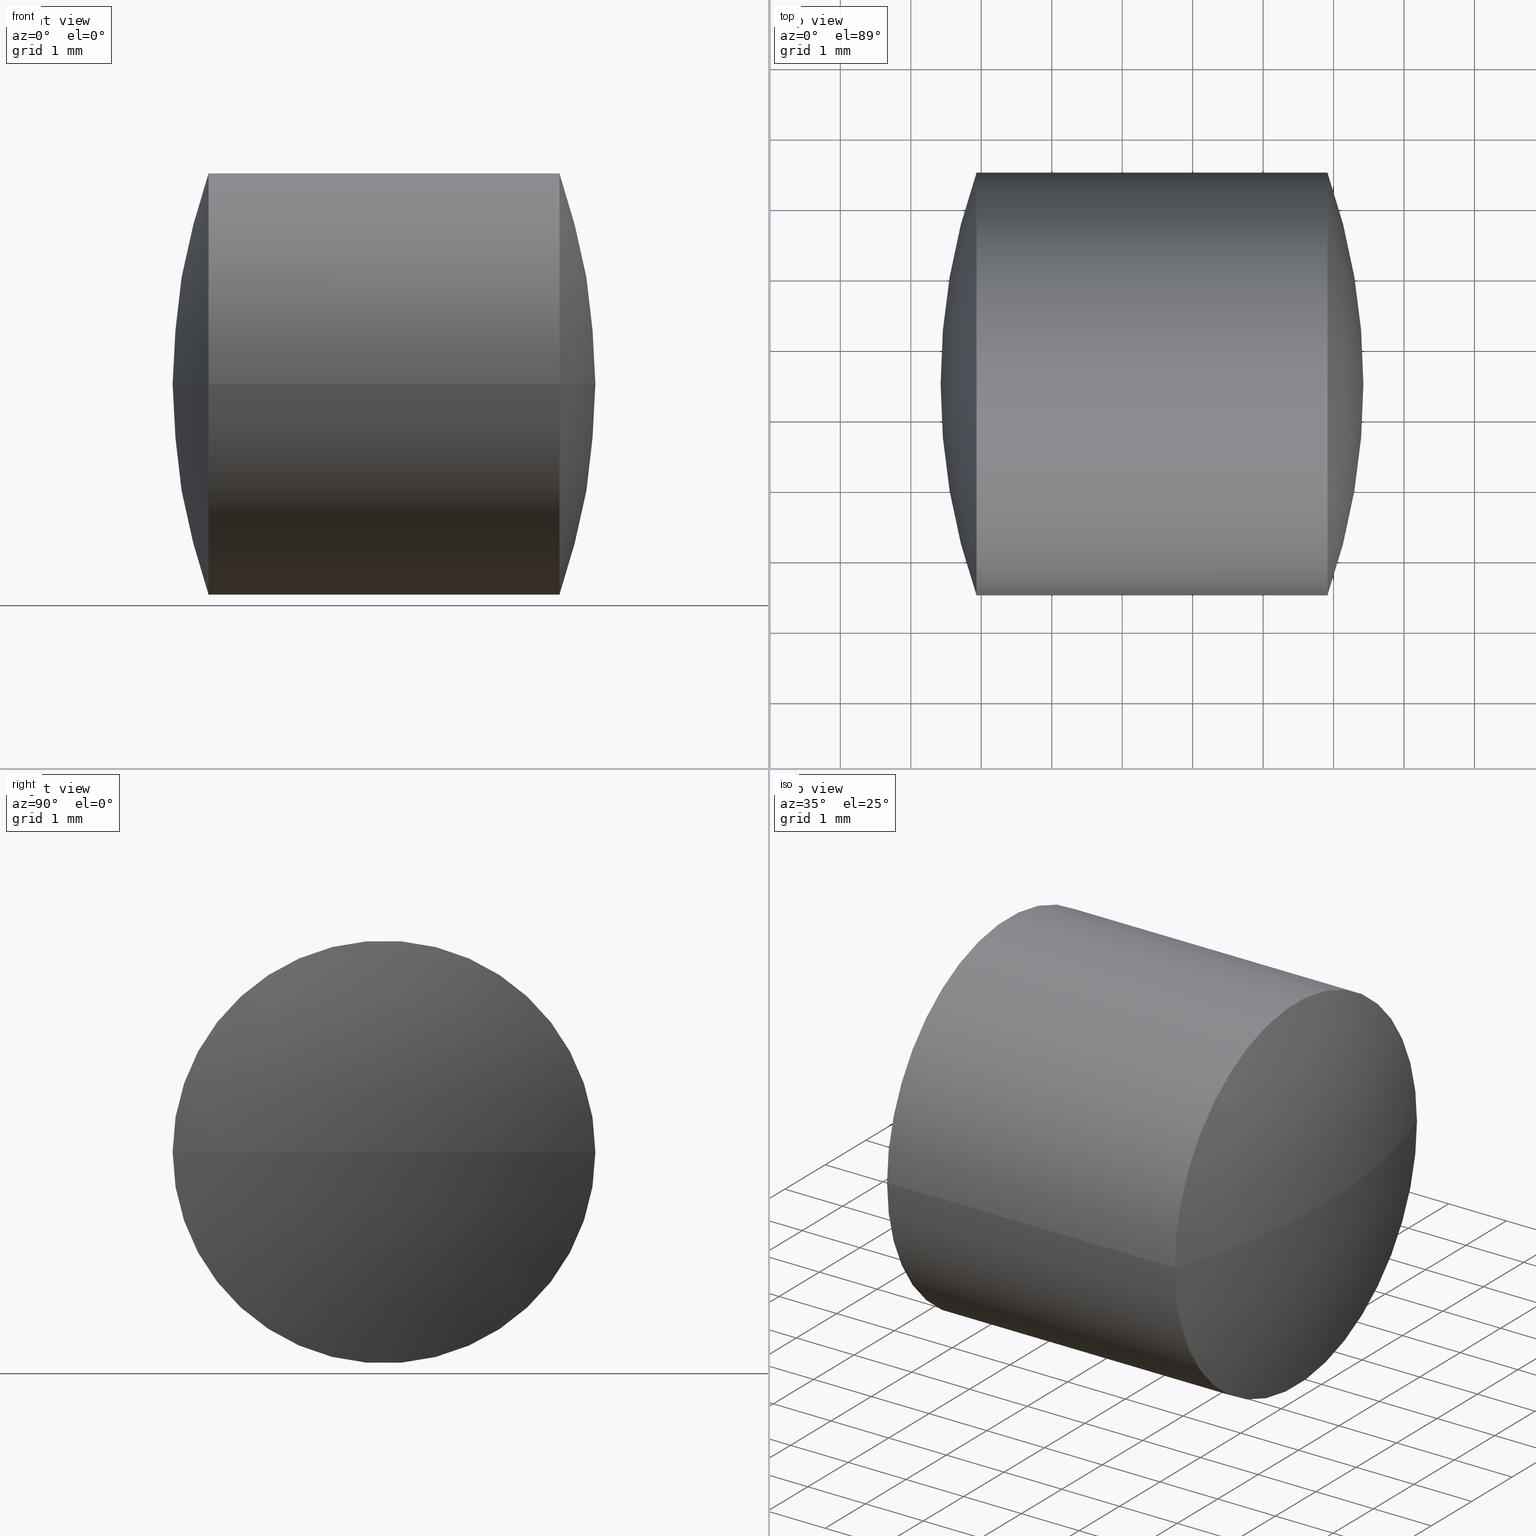
[diagram: canonical four-view strip — front | top / right | iso, engineering-drawing reading convention]
A machine part, canonical four-view strip (front | top / right | iso — engineering-drawing reading convention). The complete STEP part file that produces these views, byte-faithful:
ISO-10303-21;
HEADER;
FILE_DESCRIPTION (( 'STEP AP203' ),
    '1' );
FILE_NAME ('110007.STEP',
    '2019-06-24T09:16:13',
    ( '' ),
    ( '' ),
    'SwSTEP 2.0',
    'SolidWorks 2016',
    '' );
FILE_SCHEMA (( 'CONFIG_CONTROL_DESIGN' ));
ENDSEC;

DATA;
#1 = CIRCLE ( 'NONE', #157, 3.000001032702598100 ) ;
#2 = SPHERICAL_SURFACE ( 'NONE', #71, 9.078662146976359500 ) ;
#3 = EDGE_CURVE ( 'NONE', #282, #68, #256, .T. ) ;
#4 = PERSON_AND_ORGANIZATION ( #229, #103 ) ;
#5 = ORIENTED_EDGE ( 'NONE', *, *, #109, .F. ) ;
#6 = DIRECTION ( 'NONE',  ( 9.553849718675432400E-016, -1.000000000000000000, 0.0000000000000000000 ) ) ;
#7 = CC_DESIGN_PERSON_AND_ORGANIZATION_ASSIGNMENT ( #180, #62, ( #44 ) ) ;
#8 = CARTESIAN_POINT ( 'NONE',  ( 23.77530362994406900, 11.48412513980632000, 0.0000000000000000000 ) ) ;
#9 = LOCAL_TIME ( 17, 16, 13.00000000000000000, #93 ) ;
#10 = ORIENTED_EDGE ( 'NONE', *, *, #202, .F. ) ;
#11 = APPLICATION_PROTOCOL_DEFINITION ( 'international standard', 'config_control_design', 1994, #291 ) ;
#12 = DIRECTION ( 'NONE',  ( 9.553849718675432400E-016, -1.000000000000000000, 0.0000000000000000000 ) ) ;
#13 = CARTESIAN_POINT ( 'NONE',  ( 22.91320241020381200, 11.48412513980631800, 0.0000000000000000000 ) ) ;
#14 = DATE_AND_TIME ( #141, #218 ) ;
#15 = ORIENTED_EDGE ( 'NONE', *, *, #31, .F. ) ;
#16 = DIRECTION ( 'NONE',  ( 1.000000000000000000, 1.031215386547264900E-015, -0.0000000000000000000 ) ) ;
#17 = APPLICATION_CONTEXT ( 'configuration controlled 3d designs of mechanical parts and assemblies' ) ;
#18 = ADVANCED_FACE ( 'NONE', ( #170 ), #196, .T. ) ;
#19 = DESIGN_CONTEXT ( 'detailed design', #119, 'design' ) ;
#20 = APPROVAL_PERSON_ORGANIZATION ( #238, #237, #300 ) ;
#21 = PERSON_AND_ORGANIZATION ( #229, #103 ) ;
#22 = FACE_OUTER_BOUND ( 'NONE', #85, .T. ) ;
#23 = PERSON_AND_ORGANIZATION_ROLE ( 'classification_officer' ) ;
#24 = ORIENTED_EDGE ( 'NONE', *, *, #269, .T. ) ;
#25 = CC_DESIGN_PERSON_AND_ORGANIZATION_ASSIGNMENT ( #128, #140, ( #285 ) ) ;
#26 = ADVANCED_BREP_SHAPE_REPRESENTATION ( '110007', ( #113, #120 ), #99 ) ;
#27 = CIRCLE ( 'NONE', #129, 9.078662146976460800 ) ;
#28 = CC_DESIGN_APPROVAL ( #42, ( #285 ) ) ;
#29 = APPROVAL_DATE_TIME ( #69, #50 ) ;
#30 = ORIENTED_EDGE ( 'NONE', *, *, #59, .F. ) ;
#31 = EDGE_CURVE ( 'NONE', #68, #245, #82, .T. ) ;
#32 = DIRECTION ( 'NONE',  ( -1.146461966241064700E-015, 1.000000000000000000, 0.0000000000000000000 ) ) ;
#33 = CALENDAR_DATE ( 2019, 24, 6 ) ;
#34 = LOCAL_TIME ( 17, 16, 13.00000000000000000, #55 ) ;
#35 = ADVANCED_FACE ( 'NONE', ( #264 ), #100, .T. ) ;
#36 = DIRECTION ( 'NONE',  ( 0.0000000000000000000, 0.0000000000000000000, 1.000000000000000000 ) ) ;
#37 = CARTESIAN_POINT ( 'NONE',  ( 23.77530362994406600, 14.48412617250891500, 0.0000000000000000000 ) ) ;
#38 = CARTESIAN_POINT ( 'NONE',  ( 22.91320241020381600, 8.484124107103731700, 0.0000000000000000000 ) ) ;
#39 = COORDINATED_UNIVERSAL_TIME_OFFSET ( 8, 0, .AHEAD. ) ;
#40 = ADVANCED_FACE ( 'NONE', ( #22 ), #2, .T. ) ;
#41 = CARTESIAN_POINT ( 'NONE',  ( 17.42320994893274000, 11.48412513980631100, 0.0000000000000000000 ) ) ;
#42 = APPROVAL ( #91, 'δָ��' ) ;
#43 = COORDINATED_UNIVERSAL_TIME_OFFSET ( 8, 0, .AHEAD. ) ;
#44 = PRODUCT ( '110007', '110007', '', ( #179 ) ) ;
#45 = APPROVAL_ROLE ( '' ) ;
#46 = PRODUCT_DEFINITION ( 'δ֪', '', #143, #19 ) ;
#47 = APPLICATION_PROTOCOL_DEFINITION ( 'international standard', 'config_control_design', 1994, #119 ) ;
#48 = PERSON_AND_ORGANIZATION_ROLE ( 'creator' ) ;
#49 = LOCAL_TIME ( 17, 16, 13.00000000000000000, #283 ) ;
#50 = APPROVAL ( #190, 'δָ��' ) ;
#51 = CLOSED_SHELL ( 'NONE', ( #40, #35, #64, #244, #274, #18 ) ) ;
#52 = APPROVAL_STATUS ( 'not_yet_approved' ) ;
#53 = COORDINATED_UNIVERSAL_TIME_OFFSET ( 8, 0, .AHEAD. ) ;
#54 = CALENDAR_DATE ( 2019, 24, 6 ) ;
#55 = COORDINATED_UNIVERSAL_TIME_OFFSET ( 8, 0, .AHEAD. ) ;
#56 = AXIS2_PLACEMENT_3D ( 'NONE', #174, #177, #216 ) ;
#57 = DIRECTION ( 'NONE',  ( 0.0000000000000000000, 0.0000000000000000000, 1.000000000000000000 ) ) ;
#58 = ORIENTED_EDGE ( 'NONE', *, *, #269, .F. ) ;
#59 = EDGE_CURVE ( 'NONE', #188, #95, #126, .T. ) ;
#60 = DIRECTION ( 'NONE',  ( -1.156481919217246500E-015, 1.000000000000000000, 0.0000000000000000000 ) ) ;
#61 = LINE ( 'NONE', #37, #209 ) ;
#62 = PERSON_AND_ORGANIZATION_ROLE ( 'design_owner' ) ;
#63 = SECURITY_CLASSIFICATION ( '', '', #94 ) ;
#64 = ADVANCED_FACE ( 'NONE', ( #200 ), #70, .T. ) ;
#65 = AXIS2_PLACEMENT_3D ( 'NONE', #101, #267, #6 ) ;
#66 = CARTESIAN_POINT ( 'NONE',  ( 23.42319487147487300, 11.48412513980632200, 0.0000000000000000000 ) ) ;
#67 = APPROVAL_PERSON_ORGANIZATION ( #117, #42, #45 ) ;
#68 = VERTEX_POINT ( 'NONE', #132 ) ;
#69 = DATE_AND_TIME ( #195, #9 ) ;
#70 = SPHERICAL_SURFACE ( 'NONE', #65, 9.078662146976460800 ) ;
#71 = AXIS2_PLACEMENT_3D ( 'NONE', #130, #36, #290 ) ;
#72 = COORDINATED_UNIVERSAL_TIME_OFFSET ( 8, 0, .AHEAD. ) ;
#73 = DESIGN_CONTEXT ( 'detailed design', #114, 'design' ) ;
#74 = CC_DESIGN_DATE_AND_TIME_ASSIGNMENT ( #150, #259, ( #240 ) ) ;
#75 = PERSON_AND_ORGANIZATION ( #229, #103 ) ;
#76 = APPROVAL ( #144, 'δָ��' ) ;
#77 = CC_DESIGN_PERSON_AND_ORGANIZATION_ASSIGNMENT ( #295, #161, ( #63 ) ) ;
#78 = ORIENTED_EDGE ( 'NONE', *, *, #287, .F. ) ;
#79 = AXIS2_PLACEMENT_3D ( 'NONE', #242, #201, #60 ) ;
#80 = DIRECTION ( 'NONE',  ( 1.000000000000000000, 1.031215386547264900E-015, -0.0000000000000000000 ) ) ;
#81 = SPHERICAL_SURFACE ( 'NONE', #220, 9.078662146976460800 ) ;
#82 = CIRCLE ( 'NONE', #56, 3.000001032702598100 ) ;
#83 = DIRECTION ( 'NONE',  ( -1.156481919217245100E-015, 1.000000000000000000, 0.0000000000000000000 ) ) ;
#84 = AXIS2_PLACEMENT_3D ( 'NONE', #8, #80, #104 ) ;
#85 = EDGE_LOOP ( 'NONE', ( #147, #286, #15 ) ) ;
#86 = DIRECTION ( 'NONE',  ( -1.156481919217243800E-015, 1.000000000000000000, 0.0000000000000000000 ) ) ;
#87 = CARTESIAN_POINT ( 'NONE',  ( 26.50187209590910000, 11.48412513980632000, 0.0000000000000000000 ) ) ;
#88 = CARTESIAN_POINT ( 'NONE',  ( 14.34453272449841200, 11.48412513980631300, 0.0000000000000000000 ) ) ;
#89 = PERSON_AND_ORGANIZATION_ROLE ( 'design_supplier' ) ;
#90 = DATE_AND_TIME ( #219, #49 ) ;
#91 = APPROVAL_STATUS ( 'not_yet_approved' ) ;
#92 = CC_DESIGN_APPROVAL ( #76, ( #46 ) ) ;
#93 = COORDINATED_UNIVERSAL_TIME_OFFSET ( 8, 0, .AHEAD. ) ;
#94 = SECURITY_CLASSIFICATION_LEVEL ( 'unclassified' ) ;
#95 = VERTEX_POINT ( 'NONE', #38 ) ;
#96 = LOCAL_TIME ( 17, 16, 13.00000000000000000, #166 ) ;
#97 = CC_DESIGN_APPROVAL ( #258, ( #143 ) ) ;
#98 = PERSON_AND_ORGANIZATION ( #229, #103 ) ;
#99 =( GEOMETRIC_REPRESENTATION_CONTEXT ( 3 ) GLOBAL_UNCERTAINTY_ASSIGNED_CONTEXT ( ( #265 ) ) GLOBAL_UNIT_ASSIGNED_CONTEXT ( ( #227, #203, #225 ) ) REPRESENTATION_CONTEXT ( 'NONE', 'WORKASPACE' ) );
#100 = CYLINDRICAL_SURFACE ( 'NONE', #84, 3.000001032702594600 ) ;
#101 = CARTESIAN_POINT ( 'NONE',  ( 14.34453272449841200, 11.48412513980631300, 0.0000000000000000000 ) ) ;
#102 = CARTESIAN_POINT ( 'NONE',  ( 26.50187209590910000, 11.48412513980632000, 0.0000000000000000000 ) ) ;
#103 = ORGANIZATION ( 'δָ��', 'δָ��', '' ) ;
#104 = DIRECTION ( 'NONE',  ( -1.156481919217245100E-015, 1.000000000000000000, 0.0000000000000000000 ) ) ;
#105 = CARTESIAN_POINT ( 'NONE',  ( 26.50187209590910000, 11.48412513980632000, 0.0000000000000000000 ) ) ;
#106 = CC_DESIGN_PERSON_AND_ORGANIZATION_ASSIGNMENT ( #133, #48, ( #46 ) ) ;
#107 = LOCAL_TIME ( 17, 16, 13.00000000000000000, #43 ) ;
#108 = ORIENTED_EDGE ( 'NONE', *, *, #187, .T. ) ;
#109 = EDGE_CURVE ( 'NONE', #188, #262, #181, .T. ) ;
#110 = DIRECTION ( 'NONE',  ( 0.0000000000000000000, -1.000000000000000000, 1.224646799147353200E-016 ) ) ;
#111 = DATE_AND_TIME ( #169, #34 ) ;
#112 = CARTESIAN_POINT ( 'NONE',  ( 22.91320241020380900, 14.48412617250891000, -3.673941662137976700E-016 ) ) ;
#113 = MANIFOLD_SOLID_BREP ( '��ת1', #51 ) ;
#114 = APPLICATION_CONTEXT ( 'configuration controlled 3d designs of mechanical parts and assemblies' ) ;
#115 = CC_DESIGN_PERSON_AND_ORGANIZATION_ASSIGNMENT ( #154, #235, ( #143 ) ) ;
#116 = SECURITY_CLASSIFICATION_LEVEL ( 'unclassified' ) ;
#117 = PERSON_AND_ORGANIZATION ( #229, #103 ) ;
#118 = CIRCLE ( 'NONE', #194, 3.000001032702591000 ) ;
#119 = APPLICATION_CONTEXT ( 'configuration controlled 3d designs of mechanical parts and assemblies' ) ;
#120 = AXIS2_PLACEMENT_3D ( 'NONE', #252, #273, #152 ) ;
#121 = MECHANICAL_CONTEXT ( 'NONE', #17, 'mechanical' ) ;
#122 = APPROVAL_PERSON_ORGANIZATION ( #191, #266, #296 ) ;
#123 = ORIENTED_EDGE ( 'NONE', *, *, #284, .F. ) ;
#124 = CC_DESIGN_APPROVAL ( #50, ( #240 ) ) ;
#125 = CC_DESIGN_DATE_AND_TIME_ASSIGNMENT ( #289, #165, ( #46 ) ) ;
#126 = CIRCLE ( 'NONE', #79, 3.000001032702591000 ) ;
#127 = PRODUCT_RELATED_PRODUCT_CATEGORY ( 'detail', '', ( #276 ) ) ;
#128 = PERSON_AND_ORGANIZATION ( #229, #103 ) ;
#129 = AXIS2_PLACEMENT_3D ( 'NONE', #204, #158, #156 ) ;
#130 = CARTESIAN_POINT ( 'NONE',  ( 26.50187209590910000, 11.48412513980632000, 0.0000000000000000000 ) ) ;
#131 = ORIENTED_EDGE ( 'NONE', *, *, #175, .F. ) ;
#132 = CARTESIAN_POINT ( 'NONE',  ( 17.93320241020381200, 14.48412617250891400, 0.0000000000000000000 ) ) ;
#133 = PERSON_AND_ORGANIZATION ( #229, #103 ) ;
#134 = ORIENTED_EDGE ( 'NONE', *, *, #3, .T. ) ;
#135 = CARTESIAN_POINT ( 'NONE',  ( 17.93320241020381500, 11.48412513980631500, 0.0000000000000000000 ) ) ;
#136 = DIRECTION ( 'NONE',  ( 0.0000000000000000000, 0.0000000000000000000, 1.000000000000000000 ) ) ;
#137 = CARTESIAN_POINT ( 'NONE',  ( 17.93320241020381900, 8.484124107103717400, 3.673941662137992000E-016 ) ) ;
#138 = COORDINATED_UNIVERSAL_TIME_OFFSET ( 8, 0, .AHEAD. ) ;
#139 = PRODUCT_RELATED_PRODUCT_CATEGORY ( 'detail', '', ( #44 ) ) ;
#140 = PERSON_AND_ORGANIZATION_ROLE ( 'creator' ) ;
#141 = CALENDAR_DATE ( 2019, 24, 6 ) ;
#142 = CALENDAR_DATE ( 2019, 24, 6 ) ;
#143 = PRODUCT_DEFINITION_FORMATION_WITH_SPECIFIED_SOURCE ( '�κ�', '', #44, .NOT_KNOWN. ) ;
#144 = APPROVAL_STATUS ( 'not_yet_approved' ) ;
#145 = PERSON_AND_ORGANIZATION_ROLE ( 'creator' ) ;
#146 = PERSON_AND_ORGANIZATION ( #229, #103 ) ;
#147 = ORIENTED_EDGE ( 'NONE', *, *, #3, .F. ) ;
#148 = APPROVAL_DATE_TIME ( #211, #266 ) ;
#149 = CC_DESIGN_PERSON_AND_ORGANIZATION_ASSIGNMENT ( #4, #145, ( #236 ) ) ;
#150 = DATE_AND_TIME ( #142, #275 ) ;
#151 = DIRECTION ( 'NONE',  ( -1.000000000000000000, 0.0000000000000000000, 0.0000000000000000000 ) ) ;
#152 = DIRECTION ( 'NONE',  ( 1.000000000000000000, 0.0000000000000000000, 0.0000000000000000000 ) ) ;
#153 = DIRECTION ( 'NONE',  ( 0.0000000000000000000, -0.0000000000000000000, -1.000000000000000000 ) ) ;
#154 = PERSON_AND_ORGANIZATION ( #229, #103 ) ;
#155 = DIRECTION ( 'NONE',  ( -1.156481919217246500E-015, 1.000000000000000000, 0.0000000000000000000 ) ) ;
#156 = DIRECTION ( 'NONE',  ( 1.000000000000000000, 0.0000000000000000000, 0.0000000000000000000 ) ) ;
#157 = AXIS2_PLACEMENT_3D ( 'NONE', #135, #185, #86 ) ;
#158 = DIRECTION ( 'NONE',  ( 0.0000000000000000000, 0.0000000000000000000, 1.000000000000000000 ) ) ;
#159 = PERSON_AND_ORGANIZATION ( #229, #103 ) ;
#160 = AXIS2_PLACEMENT_3D ( 'NONE', #105, #217, #151 ) ;
#161 = PERSON_AND_ORGANIZATION_ROLE ( 'classification_officer' ) ;
#162 = CC_DESIGN_DATE_AND_TIME_ASSIGNMENT ( #186, #163, ( #236 ) ) ;
#163 = DATE_TIME_ROLE ( 'creation_date' ) ;
#164 = APPROVAL_DATE_TIME ( #90, #258 ) ;
#165 = DATE_TIME_ROLE ( 'creation_date' ) ;
#166 = COORDINATED_UNIVERSAL_TIME_OFFSET ( 8, 0, .AHEAD. ) ;
#167 = APPROVAL_PERSON_ORGANIZATION ( #228, #258, #260 ) ;
#168 = CC_DESIGN_DATE_AND_TIME_ASSIGNMENT ( #248, #233, ( #63 ) ) ;
#169 = CALENDAR_DATE ( 2019, 24, 6 ) ;
#170 = FACE_OUTER_BOUND ( 'NONE', #241, .T. ) ;
#171 = AXIS2_PLACEMENT_3D ( 'NONE', #87, #272, #110 ) ;
#172 = DATE_AND_TIME ( #54, #302 ) ;
#173 = VECTOR ( 'NONE', #250, 1000.000000000000000 ) ;
#174 = CARTESIAN_POINT ( 'NONE',  ( 17.93320241020381500, 11.48412513980631500, 0.0000000000000000000 ) ) ;
#175 = EDGE_CURVE ( 'NONE', #245, #95, #213, .T. ) ;
#176 = PRODUCT_DEFINITION_SHAPE ( 'NONE', 'NONE',  #236 ) ;
#177 = DIRECTION ( 'NONE',  ( 1.000000000000000000, 1.031215386547264900E-015, -0.0000000000000000000 ) ) ;
#178 = LOCAL_TIME ( 17, 16, 13.00000000000000000, #138 ) ;
#179 = MECHANICAL_CONTEXT ( 'NONE', #291, 'mechanical' ) ;
#180 = PERSON_AND_ORGANIZATION ( #229, #103 ) ;
#181 = CIRCLE ( 'NONE', #297, 9.078662146976460800 ) ;
#182 = DIRECTION ( 'NONE',  ( 1.000000000000000000, 1.031215386547264900E-015, -0.0000000000000000000 ) ) ;
#183 = DIRECTION ( 'NONE',  ( 0.0000000000000000000, 1.000000000000000000, -1.224646799147353000E-016 ) ) ;
#184 = ORIENTED_EDGE ( 'NONE', *, *, #187, .F. ) ;
#185 = DIRECTION ( 'NONE',  ( 1.000000000000000000, 1.031215386547264900E-015, -0.0000000000000000000 ) ) ;
#186 = DATE_AND_TIME ( #243, #178 ) ;
#187 = EDGE_CURVE ( 'NONE', #95, #262, #27, .T. ) ;
#188 = VERTEX_POINT ( 'NONE', #112 ) ;
#189 = APPLICATION_PROTOCOL_DEFINITION ( 'international standard', 'config_control_design', 1994, #17 ) ;
#190 = APPROVAL_STATUS ( 'not_yet_approved' ) ;
#191 = PERSON_AND_ORGANIZATION ( #229, #103 ) ;
#192 = ORIENTED_EDGE ( 'NONE', *, *, #202, .T. ) ;
#193 = CC_DESIGN_APPROVAL ( #237, ( #236 ) ) ;
#194 = AXIS2_PLACEMENT_3D ( 'NONE', #13, #16, #155 ) ;
#195 = CALENDAR_DATE ( 2019, 24, 6 ) ;
#196 = SPHERICAL_SURFACE ( 'NONE', #279, 9.078662146976359500 ) ;
#197 = CALENDAR_DATE ( 2019, 24, 6 ) ;
#198 = ORIENTED_EDGE ( 'NONE', *, *, #59, .T. ) ;
#199 = CYLINDRICAL_SURFACE ( 'NONE', #246, 3.000001032702594600 ) ;
#200 = FACE_OUTER_BOUND ( 'NONE', #205, .T. ) ;
#201 = DIRECTION ( 'NONE',  ( 1.000000000000000000, 1.031215386547264900E-015, -0.0000000000000000000 ) ) ;
#202 = EDGE_CURVE ( 'NONE', #245, #68, #1, .T. ) ;
#203 =( NAMED_UNIT ( * ) PLANE_ANGLE_UNIT ( ) SI_UNIT ( $, .RADIAN. ) );
#204 = CARTESIAN_POINT ( 'NONE',  ( 14.34453272449841200, 11.48412513980631300, 0.0000000000000000000 ) ) ;
#205 = EDGE_LOOP ( 'NONE', ( #24, #214, #184 ) ) ;
#206 = DIRECTION ( 'NONE',  ( 1.000000000000000000, 0.0000000000000000000, 0.0000000000000000000 ) ) ;
#207 = CARTESIAN_POINT ( 'NONE',  ( 23.77530362994406900, 11.48412513980632000, 0.0000000000000000000 ) ) ;
#208 = CC_DESIGN_PERSON_AND_ORGANIZATION_ASSIGNMENT ( #21, #277, ( #276 ) ) ;
#209 = VECTOR ( 'NONE', #271, 1000.000000000000000 ) ;
#210 = CC_DESIGN_SECURITY_CLASSIFICATION ( #63, ( #285 ) ) ;
#211 = DATE_AND_TIME ( #33, #96 ) ;
#212 = APPROVAL_DATE_TIME ( #111, #76 ) ;
#213 = LINE ( 'NONE', #293, #173 ) ;
#214 = ORIENTED_EDGE ( 'NONE', *, *, #109, .T. ) ;
#215 = CC_DESIGN_PERSON_AND_ORGANIZATION_ASSIGNMENT ( #159, #257, ( #143 ) ) ;
#216 = DIRECTION ( 'NONE',  ( -1.156481919217243800E-015, 1.000000000000000000, 0.0000000000000000000 ) ) ;
#217 = DIRECTION ( 'NONE',  ( -0.0000000000000000000, 0.0000000000000000000, -1.000000000000000000 ) ) ;
#218 = LOCAL_TIME ( 17, 16, 13.00000000000000000, #305 ) ;
#219 = CALENDAR_DATE ( 2019, 24, 6 ) ;
#220 = AXIS2_PLACEMENT_3D ( 'NONE', #88, #153, #12 ) ;
#221 = CC_DESIGN_APPROVAL ( #266, ( #63 ) ) ;
#222 = CARTESIAN_POINT ( 'NONE',  ( 14.34453272449841200, 11.48412513980631300, 0.0000000000000000000 ) ) ;
#223 = FACE_OUTER_BOUND ( 'NONE', #224, .T. ) ;
#224 = EDGE_LOOP ( 'NONE', ( #5, #198, #108 ) ) ;
#225 =( NAMED_UNIT ( * ) SI_UNIT ( $, .STERADIAN. ) SOLID_ANGLE_UNIT ( ) );
#226 = AXIS2_PLACEMENT_3D ( 'NONE', #247, #136, #206 ) ;
#227 =( LENGTH_UNIT ( ) NAMED_UNIT ( * ) SI_UNIT ( .MILLI., .METRE. ) );
#228 = PERSON_AND_ORGANIZATION ( #229, #103 ) ;
#229 = PERSON ( 'δָ��', 'δָ��', 'δָ��', ('δָ��'), ('δָ��'), ('δָ��') ) ;
#230 = CC_DESIGN_SECURITY_CLASSIFICATION ( #240, ( #143 ) ) ;
#231 = APPROVAL_DATE_TIME ( #172, #42 ) ;
#232 = APPROVAL_PERSON_ORGANIZATION ( #263, #76, #278 ) ;
#233 = DATE_TIME_ROLE ( 'classification_date' ) ;
#234 = ORIENTED_EDGE ( 'NONE', *, *, #287, .T. ) ;
#235 = PERSON_AND_ORGANIZATION_ROLE ( 'creator' ) ;
#236 = PRODUCT_DEFINITION ( 'δ֪', '', #285, #73 ) ;
#237 = APPROVAL ( #298, 'δָ��' ) ;
#238 = PERSON_AND_ORGANIZATION ( #229, #103 ) ;
#239 = SHAPE_DEFINITION_REPRESENTATION ( #176, #26 ) ;
#240 = SECURITY_CLASSIFICATION ( '', '', #116 ) ;
#241 = EDGE_LOOP ( 'NONE', ( #123, #134, #10 ) ) ;
#242 = CARTESIAN_POINT ( 'NONE',  ( 22.91320241020381200, 11.48412513980631800, 0.0000000000000000000 ) ) ;
#243 = CALENDAR_DATE ( 2019, 24, 6 ) ;
#244 = ADVANCED_FACE ( 'NONE', ( #223 ), #81, .T. ) ;
#245 = VERTEX_POINT ( 'NONE', #137 ) ;
#246 = AXIS2_PLACEMENT_3D ( 'NONE', #207, #182, #83 ) ;
#247 = CARTESIAN_POINT ( 'NONE',  ( 0.0000000000000000000, 0.0000000000000000000, 0.0000000000000000000 ) ) ;
#248 = DATE_AND_TIME ( #197, #261 ) ;
#249 = EDGE_LOOP ( 'NONE', ( #301, #292, #30, #78 ) ) ;
#250 = DIRECTION ( 'NONE',  ( 1.000000000000000000, 1.031215386547264900E-015, -0.0000000000000000000 ) ) ;
#251 = CC_DESIGN_PERSON_AND_ORGANIZATION_ASSIGNMENT ( #146, #89, ( #285 ) ) ;
#252 = CARTESIAN_POINT ( 'NONE',  ( 0.0000000000000000000, 0.0000000000000000000, 0.0000000000000000000 ) ) ;
#253 = APPLICATION_PROTOCOL_DEFINITION ( 'international standard', 'config_control_design', 1994, #114 ) ;
#254 = APPROVAL_STATUS ( 'not_yet_approved' ) ;
#255 = CALENDAR_DATE ( 2019, 24, 6 ) ;
#256 = CIRCLE ( 'NONE', #160, 9.078662146976359500 ) ;
#257 = PERSON_AND_ORGANIZATION_ROLE ( 'design_supplier' ) ;
#258 = APPROVAL ( #254, 'δָ��' ) ;
#259 = DATE_TIME_ROLE ( 'classification_date' ) ;
#260 = APPROVAL_ROLE ( '' ) ;
#261 = LOCAL_TIME ( 17, 16, 13.00000000000000000, #53 ) ;
#262 = VERTEX_POINT ( 'NONE', #66 ) ;
#263 = PERSON_AND_ORGANIZATION ( #229, #103 ) ;
#264 = FACE_OUTER_BOUND ( 'NONE', #249, .T. ) ;
#265 = UNCERTAINTY_MEASURE_WITH_UNIT (LENGTH_MEASURE( 1.000000000000000100E-005 ), #227, 'distance_accuracy_value', 'NONE');
#266 = APPROVAL ( #52, 'δָ��' ) ;
#267 = DIRECTION ( 'NONE',  ( 0.0000000000000000000, -0.0000000000000000000, -1.000000000000000000 ) ) ;
#268 = FACE_OUTER_BOUND ( 'NONE', #303, .T. ) ;
#269 = EDGE_CURVE ( 'NONE', #95, #188, #118, .T. ) ;
#270 = CC_DESIGN_PERSON_AND_ORGANIZATION_ASSIGNMENT ( #98, #23, ( #240 ) ) ;
#271 = DIRECTION ( 'NONE',  ( 1.000000000000000000, 1.031215386547264900E-015, -0.0000000000000000000 ) ) ;
#272 = DIRECTION ( 'NONE',  ( -1.262874622366608600E-031, 1.224646799147353200E-016, 1.000000000000000000 ) ) ;
#273 = DIRECTION ( 'NONE',  ( 0.0000000000000000000, 0.0000000000000000000, 1.000000000000000000 ) ) ;
#274 = ADVANCED_FACE ( 'NONE', ( #268 ), #199, .T. ) ;
#275 = LOCAL_TIME ( 17, 16, 13.00000000000000000, #39 ) ;
#276 = PRODUCT ( '110007', '110007', '', ( #121 ) ) ;
#277 = PERSON_AND_ORGANIZATION_ROLE ( 'design_owner' ) ;
#278 = APPROVAL_ROLE ( '' ) ;
#279 = AXIS2_PLACEMENT_3D ( 'NONE', #102, #57, #32 ) ;
#280 = APPROVAL_ROLE ( '' ) ;
#281 = APPROVAL_PERSON_ORGANIZATION ( #75, #50, #280 ) ;
#282 = VERTEX_POINT ( 'NONE', #41 ) ;
#283 = COORDINATED_UNIVERSAL_TIME_OFFSET ( 8, 0, .AHEAD. ) ;
#284 = EDGE_CURVE ( 'NONE', #282, #245, #299, .T. ) ;
#285 = PRODUCT_DEFINITION_FORMATION_WITH_SPECIFIED_SOURCE ( '�κ�', '', #276, .NOT_KNOWN. ) ;
#286 = ORIENTED_EDGE ( 'NONE', *, *, #284, .T. ) ;
#287 = EDGE_CURVE ( 'NONE', #68, #188, #61, .T. ) ;
#288 = APPROVAL_DATE_TIME ( #14, #237 ) ;
#289 = DATE_AND_TIME ( #255, #107 ) ;
#290 = DIRECTION ( 'NONE',  ( -1.146461966241064700E-015, 1.000000000000000000, 0.0000000000000000000 ) ) ;
#291 = APPLICATION_CONTEXT ( 'configuration controlled 3d designs of mechanical parts and assemblies' ) ;
#292 = ORIENTED_EDGE ( 'NONE', *, *, #175, .T. ) ;
#293 = CARTESIAN_POINT ( 'NONE',  ( 23.77530362994407300, 8.484124107103726300, 3.673941662137986600E-016 ) ) ;
#294 = DIRECTION ( 'NONE',  ( 1.262874622366608600E-031, -1.224646799147353200E-016, -1.000000000000000000 ) ) ;
#295 = PERSON_AND_ORGANIZATION ( #229, #103 ) ;
#296 = APPROVAL_ROLE ( '' ) ;
#297 = AXIS2_PLACEMENT_3D ( 'NONE', #222, #294, #183 ) ;
#298 = APPROVAL_STATUS ( 'not_yet_approved' ) ;
#299 = CIRCLE ( 'NONE', #171, 9.078662146976359500 ) ;
#300 = APPROVAL_ROLE ( '' ) ;
#301 = ORIENTED_EDGE ( 'NONE', *, *, #31, .T. ) ;
#302 = LOCAL_TIME ( 17, 16, 13.00000000000000000, #72 ) ;
#303 = EDGE_LOOP ( 'NONE', ( #131, #192, #234, #58 ) ) ;
#304 = PRODUCT_DEFINITION_SHAPE ( 'NONE', 'NONE',  #46 ) ;
#305 = COORDINATED_UNIVERSAL_TIME_OFFSET ( 8, 0, .AHEAD. ) ;
ENDSEC;
END-ISO-10303-21;
